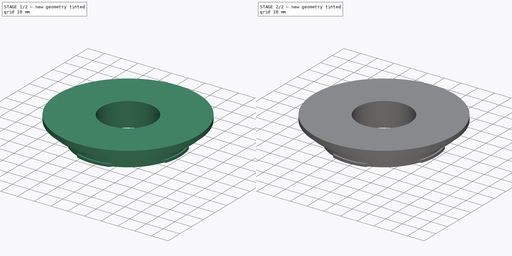
[diagram: build sequence overview — one tinted view per stage of 2, left to right]
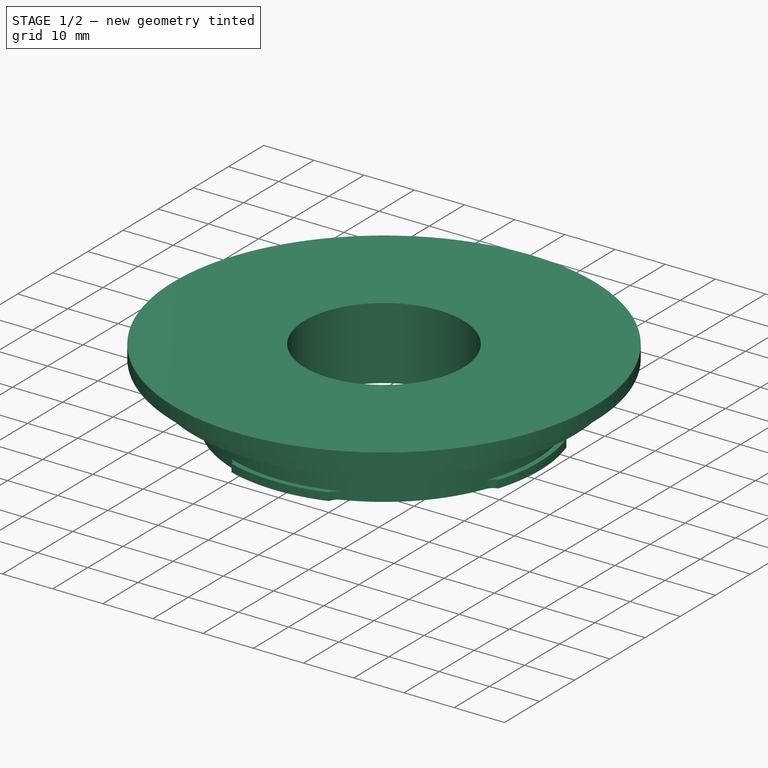
[diagram: stage 1 of 2 — iso view after this stage's code; geometry added in this stage tinted green]
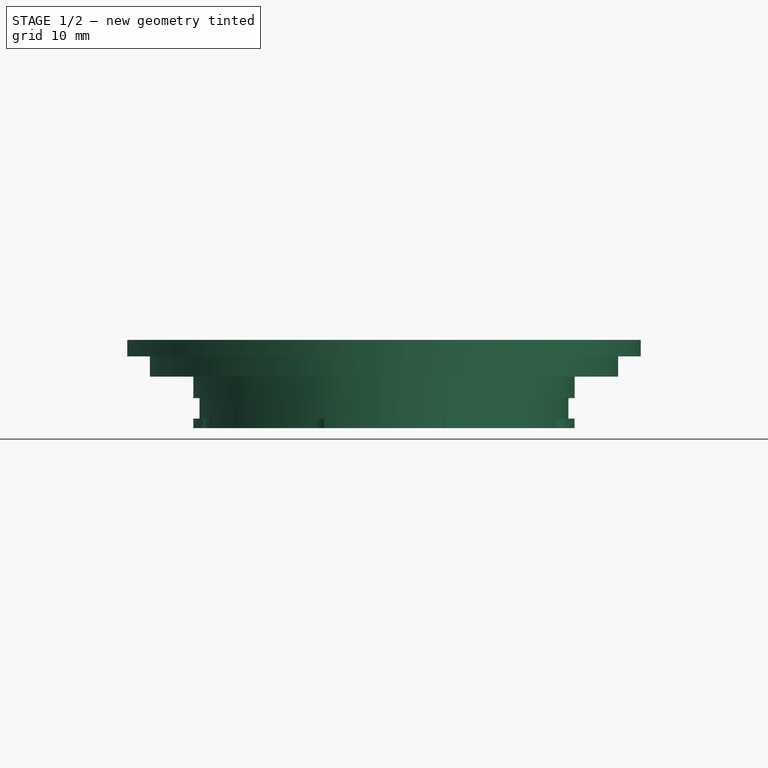
[diagram: stage 1 of 2 — front view after this stage's code; geometry added in this stage tinted green]
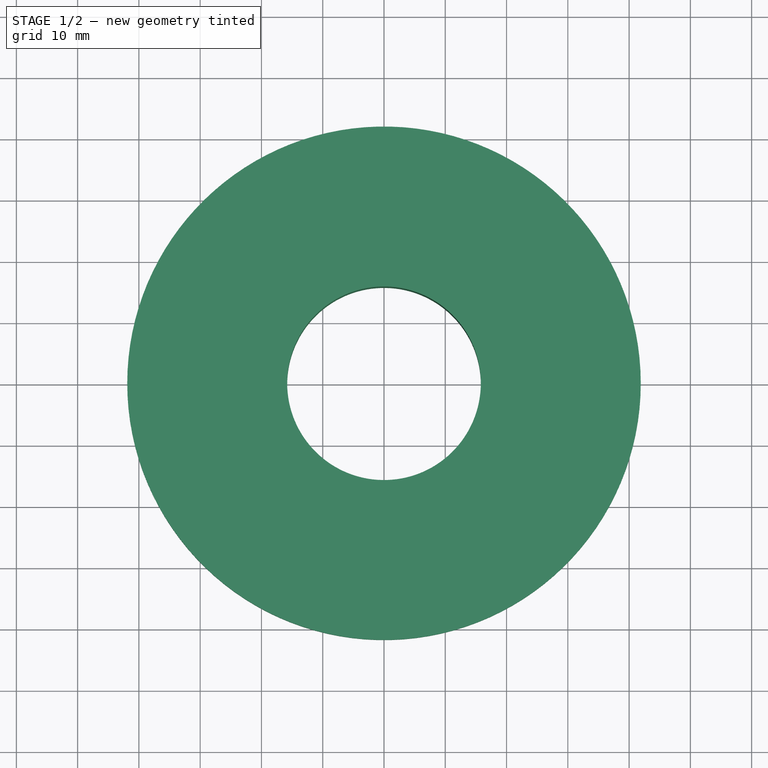
[diagram: stage 1 of 2 — top view after this stage's code; geometry added in this stage tinted green]
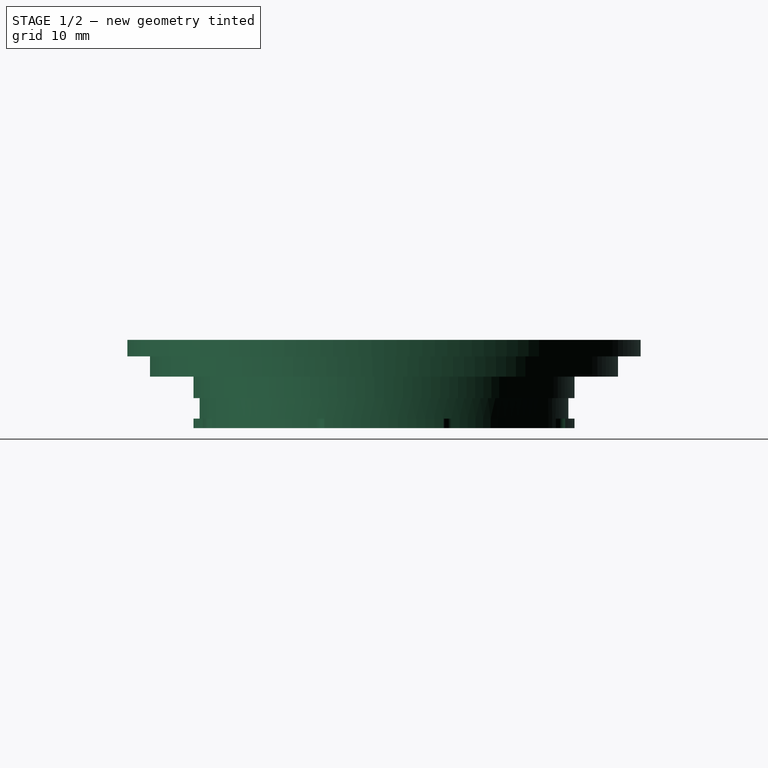
[diagram: stage 1 of 2 — right view after this stage's code; geometry added in this stage tinted green]
FCSTD DOCUMENT  (FreeCAD 1.0R39109 (Git))
Label: Rollei SL66 - lens bayonett
License: All rights reserved
LicenseURL: http://en.wikipedia.org/wiki/All_rights_reserved
objects: Sketcher::SketchObject×3, PartDesign::Pocket×2, PartDesign::Revolution×1, PartDesign::Body×1
note: 16 computed .brp shape members not serialized (recipe doc carries the construction recipe); baked Part::Feature solids carry a one-line shape summary decoded from their .brp

FEATURE [Sketcher::SketchObject] Sketch
  ArcFitTolerance = 0
  AttachmentSupport = -> [XZ_Plane]
  FullyConstrained = true
  MakeInternals = false
  MapMode = 5
  Placement = pos=(0,0,0) rot=(1,0,0;1.5708rad)
  sketch-geometry (14):
    g0: LineSegment StartX=-15.8 StartY=14.4 StartZ=0 EndX=-15.8 EndY=0 EndZ=0
    g1: LineSegment StartX=-15.8 StartY=0 StartZ=0 EndX=-31.1 EndY=0 EndZ=0
    g2: LineSegment StartX=-31.1 StartY=0 StartZ=0 EndX=-31.1 EndY=1.55 EndZ=0
    g3: LineSegment StartX=-31.1 StartY=1.55 StartZ=0 EndX=-30.1 EndY=1.55 EndZ=0
    g4: LineSegment StartX=-30.1 StartY=1.55 StartZ=0 EndX=-30.1 EndY=4.9 EndZ=0
    g5: LineSegment StartX=-30.1 StartY=4.9 StartZ=0 EndX=-31.1 EndY=4.9 EndZ=0
    g6: LineSegment StartX=-31.1 StartY=4.9 StartZ=0 EndX=-31.1 EndY=8.4 EndZ=0
    g7: LineSegment StartX=-31.1 StartY=8.4 StartZ=0 EndX=-38.2 EndY=8.4 EndZ=0
    g8: LineSegment StartX=-38.2 StartY=8.4 StartZ=0 EndX=-38.2 EndY=13.4 EndZ=0
    g9: LineSegment StartX=-38.2 StartY=13.4 StartZ=0 EndX=-40.9 EndY=13.4 EndZ=0
    g10: LineSegment StartX=-41.9 StartY=14.4 StartZ=0 EndX=-15.8 EndY=14.4 EndZ=0
    g11: LineSegment StartX=-40.9 StartY=13.4 StartZ=0 EndX=-40.9 EndY=11.7 EndZ=0
    g12: LineSegment StartX=-40.9 StartY=11.7 StartZ=0 EndX=-41.9 EndY=11.7 EndZ=0
    g13: LineSegment StartX=-41.9 StartY=11.7 StartZ=0 EndX=-41.9 EndY=14.4 EndZ=0
  constraints (42):
    c: Coincident(g1,g0)
    c: Coincident(g2,g1)
    c: Coincident(g3,g2)
    c: Coincident(g4,g3)
    c: Coincident(g5,g4)
    c: Coincident(g6,g5)
    c: Coincident(g7,g6)
    c: Coincident(g7,g8)
    c: DistanceX(g2,g3) = 1
    c: DistanceY(g1,g2) = 1.55
    c: DistanceY(g3,g4) = 3.35
    c: Vertical(g0)
    c: Vertical(g4)
    c: Horizontal(g1)
    c: Vertical(g2)
    c: Vertical(g6)
    c: Horizontal(g3)
    c: Equal(g5,g3)
    c: Horizontal(g7)
    c: DistanceX(g7,g6) = 7.1
    c: Vertical(g8)
    c: PointOnObject(g0,g-1)
    c: DistanceY(g7,g8) = 5
    c: Horizontal(g5)
    c: DistanceY(g5,g6) = 3.5
    c: DistanceX(g3,g-1) = 30.1
    c: DistanceX(g0,g-1) = 15.8
    c: Coincident(g9,g8)
    c: Horizontal(g9)
    c: Horizontal(g10)
    c: Coincident(g0,g10)
    c: Coincident(g11,g9)
    c: Vertical(g11)
    c: Coincident(g12,g11)
    c: Horizontal(g12)
    c: Vertical(g13)
    c: Coincident(g10,g13)
    c: Coincident(g12,g13)
    c: DistanceX(g12,g12) = 1
    c: DistanceX(g9,g9) = 2.7
    c: DistanceY(g7,g11) = 3.3
    c: DistanceY(g9,g10) = 1
FEATURE [PartDesign::Revolution] Revolution
  Angle = 360
  Angle2 = 60
  Axis = (0,2e-16,1)
  Base = (0,0,0)
  Placement = pos=(0,0,0) rot=(1,0,0;1.5708rad)
  Profile = -> Sketch
  ReferenceAxis = -> Sketch [V_Axis]
  Suppressed = false
  Type = 0
FEATURE [Sketcher::SketchObject] Sketch001
  ArcFitTolerance = 0
  AttachmentSupport = -> [Revolution]
  ExternalGeometry = -> [Revolution]
  FullyConstrained = true
  MakeInternals = false
  MapMode = 5
  Placement = pos=(0,0,0) rot=(1,0,0;3.14159rad)
  sketch-geometry (16):
    g0: ArcOfCircle CenterX=11.9 CenterY=30.0998 CenterZ=0 NormalX=0 NormalY=0 NormalZ=1 AngleXU=0 Radius=2.268 StartAngle=3.38709 EndAngle=4.30433
    g1: ArcOfCircle CenterX=30.0998 CenterY=11.9 CenterZ=0 NormalX=0 NormalY=0 NormalZ=1 AngleXU=0 Radius=2.268 StartAngle=3.54965 EndAngle=4.46689
    g2: ArcOfCircle CenterX=0 CenterY=0 CenterZ=0 NormalX=0 NormalY=0 NormalZ=1 AngleXU=0 Radius=30.1 StartAngle=0.374115 EndAngle=1.19668
    g3: ArcOfCircle CenterX=0 CenterY=0 CenterZ=0 NormalX=0 NormalY=0 NormalZ=1 AngleXU=0 Radius=31.1 StartAngle=0.317189 EndAngle=1.25361
    g4: ArcOfCircle CenterX=0 CenterY=0 CenterZ=0 NormalX=0 NormalY=0 NormalZ=1 AngleXU=0 Radius=30.1 StartAngle=1.94491 EndAngle=2.76748
    g5: ArcOfCircle CenterX=0 CenterY=0 CenterZ=0 NormalX=0 NormalY=0 NormalZ=1 AngleXU=0 Radius=31.1 StartAngle=1.88799 EndAngle=2.8244
    g6: ArcOfCircle CenterX=-30.0998 CenterY=11.9 CenterZ=0 NormalX=0 NormalY=0 NormalZ=1 AngleXU=0 Radius=2.268 StartAngle=4.95789 EndAngle=5.87513
    g7: ArcOfCircle CenterX=-11.9 CenterY=30.0998 CenterZ=0 NormalX=0 NormalY=0 NormalZ=1 AngleXU=0 Radius=2.268 StartAngle=5.12044 EndAngle=6.03769
    g8: ArcOfCircle CenterX=0 CenterY=0 CenterZ=0 NormalX=0 NormalY=0 NormalZ=1 AngleXU=0 Radius=30.1 StartAngle=3.51571 EndAngle=4.33827
    g9: ArcOfCircle CenterX=0 CenterY=0 CenterZ=0 NormalX=0 NormalY=0 NormalZ=1 AngleXU=0 Radius=31.1 StartAngle=3.45878 EndAngle=4.3952
    g10: ArcOfCircle CenterX=-11.9 CenterY=-30.0998 CenterZ=0 NormalX=0 NormalY=0 NormalZ=1 AngleXU=0 Radius=2.268 StartAngle=0.245497 EndAngle=1.16274
    g11: ArcOfCircle CenterX=-30.0998 CenterY=-11.9 CenterZ=0 NormalX=0 NormalY=0 NormalZ=1 AngleXU=0 Radius=2.268 StartAngle=0.408055 EndAngle=1.3253
    g12: ArcOfCircle CenterX=0 CenterY=0 CenterZ=0 NormalX=0 NormalY=0 NormalZ=1 AngleXU=0 Radius=30.1 StartAngle=5.0865 EndAngle=5.90907
    g13: ArcOfCircle CenterX=0 CenterY=0 CenterZ=0 NormalX=0 NormalY=0 NormalZ=1 AngleXU=0 Radius=31.1 StartAngle=5.02958 EndAngle=5.966
    g14: ArcOfCircle CenterX=11.9 CenterY=-30.0998 CenterZ=0 NormalX=0 NormalY=0 NormalZ=1 AngleXU=0 Radius=2.268 StartAngle=1.97885 EndAngle=2.8961
    g15: ArcOfCircle CenterX=30.0998 CenterY=-11.9 CenterZ=0 NormalX=0 NormalY=0 NormalZ=1 AngleXU=0 Radius=2.268 StartAngle=1.81629 EndAngle=2.73354
  constraints (44):
    c: DistanceX(g-1,g0) = 9.7
    c: DistanceX(g-1,g0) = 11
    c: DistanceX(g-1,g0) = 11.9
    c: PointOnObject(g1,g-3)
    c: DistanceY(g-1,g1) = 9.7
    c: DistanceY(g-1,g1) = 11
    c: DistanceY(g-1,g1) = 11.9
    c: Coincident(g2,g0)
    c: Coincident(g2,g1)
    c: Coincident(g3,g0)
    c: Coincident(g3,g1)
    c: Coincident(g3,g2)
    c: PointOnObject(g0,g-4)
    c: Coincident(g4,g7)
    c: Coincident(g4,g6)
    c: Coincident(g5,g7)
    c: Coincident(g5,g6)
    c: Coincident(g5,g4)
    c: Coincident(g12,g14)
    c: Coincident(g12,g15)
    c: Coincident(g13,g14)
    c: Coincident(g13,g15)
    c: Coincident(g13,g12)
    c: Coincident(g8,g10)
    c: Coincident(g8,g11)
    c: Coincident(g9,g10)
    c: Coincident(g9,g11)
    c: Coincident(g9,g8)
    c: Symmetric(g0,g7,g-2)
    c: Symmetric(g5,g0,g-2)
    c: Symmetric(g1,g6,g-2)
    c: Symmetric(g4,g1,g-2)
    c: Symmetric(g15,g1,g-1)
    c: Symmetric(g12,g1,g-1)
    c: Symmetric(g9,g5,g-1)
    c: Symmetric(g10,g7,g-1)
    c: Symmetric(g9,g13,g-2)
    c: Symmetric(g10,g14,g-2)
    c: Symmetric(g11,g15,g-2)
    c: Symmetric(g8,g12,g-2)
    c: Coincident(g2,g4)
    c: Coincident(g2,g8)
    c: Coincident(g2,g12)
    c: Coincident(g2,g-4)
FEATURE [PartDesign::Pocket] Pocket  label="cut outs first ring"
  BaseFeature = -> Revolution
  Direction = (0,0,1)
  Length = 1.55
  Length2 = 100
  Placement = pos=(0,0,0) rot=(1,0,0;1.5708rad)
  Profile = -> Sketch001
  Suppressed = false
  Type = 0
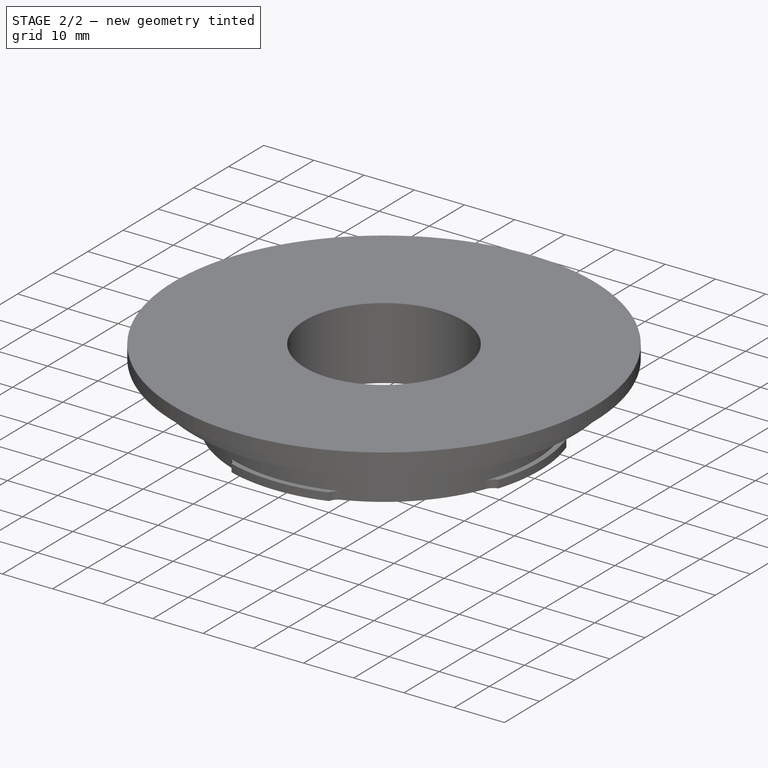
[diagram: stage 2 of 2 — iso view after this stage's code; geometry added in this stage tinted green]
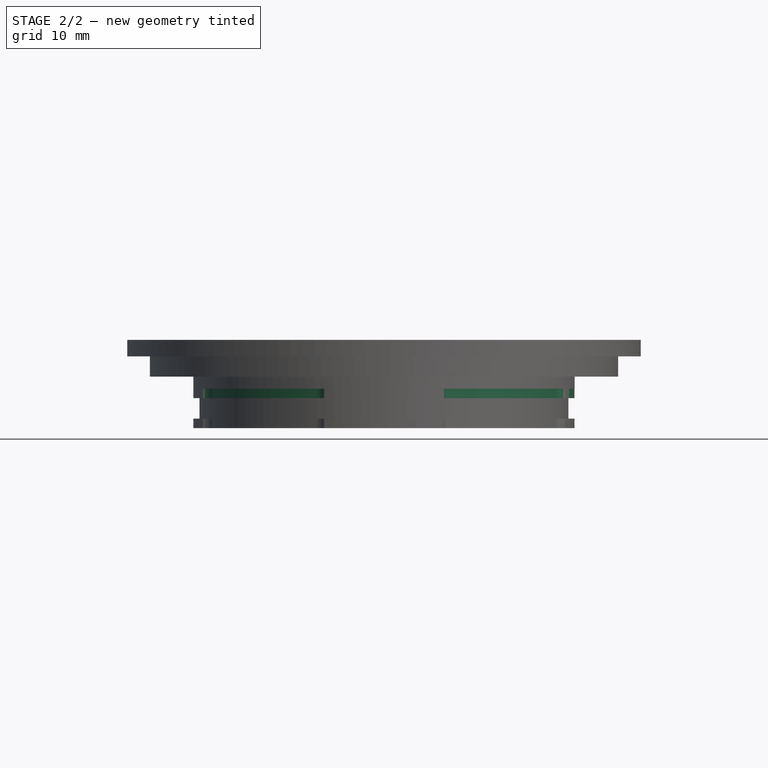
[diagram: stage 2 of 2 — front view after this stage's code; geometry added in this stage tinted green]
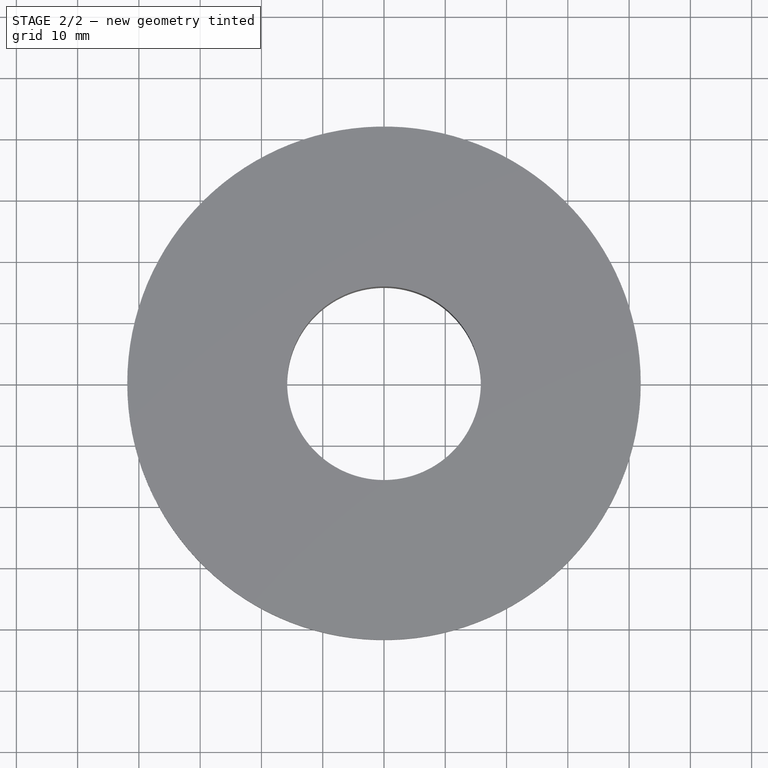
[diagram: stage 2 of 2 — top view after this stage's code; geometry added in this stage tinted green]
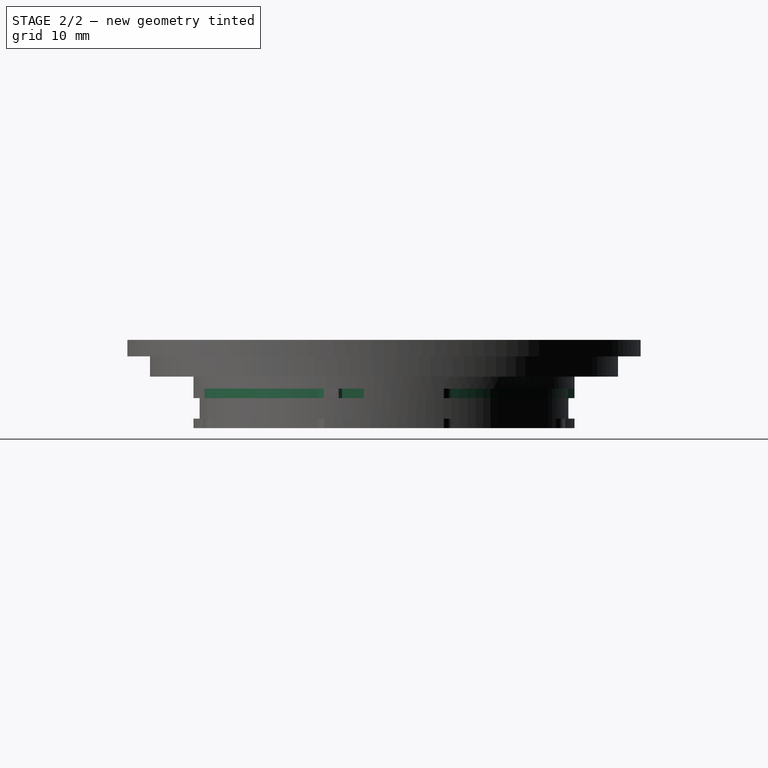
[diagram: stage 2 of 2 — right view after this stage's code; geometry added in this stage tinted green]
FEATURE [Sketcher::SketchObject] Sketch002
  ArcFitTolerance = 0
  AttachmentSupport = -> [Pocket]
  ExternalGeometry = -> [Pocket]
  FullyConstrained = true
  MakeInternals = false
  MapMode = 5
  Placement = pos=(0,2.2e-15,4.9) rot=(1,0,0;3.14159rad)
  sketch-geometry (20):
    g0: ArcOfCircle CenterX=-2.4e-15 CenterY=-6.6e-15 CenterZ=0 NormalX=0 NormalY=0 NormalZ=1 AngleXU=0 Radius=30.1 StartAngle=0.374115 EndAngle=1.19668
    g1: ArcOfCircle CenterX=30.0998 CenterY=11.9 CenterZ=0 NormalX=0 NormalY=0 NormalZ=1 AngleXU=0 Radius=2.268 StartAngle=3.54965 EndAngle=4.46689
    g2: ArcOfCircle CenterX=11.9 CenterY=30.0998 CenterZ=0 NormalX=0 NormalY=0 NormalZ=1 AngleXU=0 Radius=2.268 StartAngle=3.38709 EndAngle=4.30433
    g3: ArcOfCircle CenterX=-2.4e-15 CenterY=-6.6e-15 CenterZ=0 NormalX=0 NormalY=0 NormalZ=1 AngleXU=0 Radius=31.1 StartAngle=0.317189 EndAngle=1.25361
    g4: ArcOfCircle CenterX=-2.4e-15 CenterY=-6.6e-15 CenterZ=0 NormalX=0 NormalY=0 NormalZ=1 AngleXU=0 Radius=31.1 StartAngle=0.106309 EndAngle=0.240247
    g5: LineSegment StartX=30.2068 StartY=7.4 StartZ=0 EndX=27.9728 EndY=6.85273 EndZ=0
    g6: LineSegment StartX=30.9244 StartY=3.3 StartZ=0 EndX=28.6374 EndY=3.05595 EndZ=0
    g7: LineSegment StartX=28.6374 StartY=3.05595 StartZ=0 EndX=27.9728 EndY=6.85273 EndZ=0
    g8: ArcOfCircle CenterX=30.0998 CenterY=-11.9 CenterZ=0 NormalX=0 NormalY=0 NormalZ=1 AngleXU=0 Radius=2.268 StartAngle=1.81629 EndAngle=2.7329
    g9: ArcOfCircle CenterX=-2.4e-15 CenterY=-6.6e-15 CenterZ=0 NormalX=0 NormalY=0 NormalZ=1 AngleXU=0 Radius=30.1 StartAngle=4.79888 EndAngle=5.90912
    g10: ArcOfCircle CenterX=-2.4e-15 CenterY=-6.6e-15 CenterZ=0 NormalX=0 NormalY=0 NormalZ=1 AngleXU=0 Radius=31.1 StartAngle=4.77674 EndAngle=5.966
    g11: LineSegment StartX=2.6 StartY=-29.9875 StartZ=0 EndX=2 EndY=-31.0356 EndZ=0
    g12: ArcOfCircle CenterX=-11.9 CenterY=-30.0998 CenterZ=0 NormalX=0 NormalY=0 NormalZ=1 AngleXU=0 Radius=2.268 StartAngle=0.245497 EndAngle=1.16274
    g13: ArcOfCircle CenterX=-2.4e-15 CenterY=-6.6e-15 CenterZ=0 NormalX=0 NormalY=0 NormalZ=1 AngleXU=0 Radius=30.1 StartAngle=3.51571 EndAngle=4.33827
    g14: ArcOfCircle CenterX=-2.4e-15 CenterY=-6.6e-15 CenterZ=0 NormalX=0 NormalY=0 NormalZ=1 AngleXU=0 Radius=31.1 StartAngle=3.45878 EndAngle=4.3952
    g15: ArcOfCircle CenterX=-30.0998 CenterY=-11.9 CenterZ=0 NormalX=0 NormalY=0 NormalZ=1 AngleXU=0 Radius=2.268 StartAngle=0.408055 EndAngle=1.3253
    g16: ArcOfCircle CenterX=-2.4e-15 CenterY=-6.6e-15 CenterZ=0 NormalX=0 NormalY=0 NormalZ=1 AngleXU=0 Radius=30.1 StartAngle=1.94491 EndAngle=2.76748
    g17: ArcOfCircle CenterX=-2.4e-15 CenterY=-6.6e-15 CenterZ=0 NormalX=0 NormalY=0 NormalZ=1 AngleXU=0 Radius=31.1 StartAngle=1.88799 EndAngle=2.8244
    g18: ArcOfCircle CenterX=-11.9 CenterY=30.0998 CenterZ=0 NormalX=0 NormalY=0 NormalZ=1 AngleXU=0 Radius=2.268 StartAngle=5.12044 EndAngle=6.03769
    g19: ArcOfCircle CenterX=-30.0998 CenterY=11.9 CenterZ=0 NormalX=0 NormalY=0 NormalZ=1 AngleXU=0 Radius=2.268 StartAngle=4.95789 EndAngle=5.87513
  constraints (54):
    c: Coincident(g0,g-3)
    c: Coincident(g0,g-4)
    c: Coincident(g1,g-4)
    c: Coincident(g1,g0)
    c: Coincident(g2,g-3)
    c: Coincident(g2,g0)
    c: Coincident(g3,g2)
    c: Coincident(g3,g1)
    c: Coincident(g0,g3)
    c: Coincident(g4,g0)
    c: Coincident(g5,g4)
    c: Coincident(g6,g4)
    c: Coincident(g7,g5)
    c: Perpendicular(g-11,g5)
    c: Perpendicular(g-11,g6)
    c: Coincident(g7,g6)
    c: Equal(g6,g5)
    c: PointOnObject(g4,g-11)
    c: DistanceY(g4,g1) = 2.3
    c: Coincident(g8,g-5)
    c: Coincident(g8,g-11)
    c: DistanceY(g8,g4) = 13
    c: Coincident(g9,g0)
    c: Coincident(g9,g8)
    c: Coincident(g10,g0)
    c: Coincident(g10,g8)
    c: DistanceX(g-6,g10) = 11.7
    c: DistanceX(g-13,g9) = 13.6
    c: Coincident(g11,g9)
    c: Coincident(g11,g10)
    c: Coincident(g12,g-6)
    c: Coincident(g12,g-6)
    c: Coincident(g13,g0)
    c: Coincident(g13,g12)
    c: Coincident(g13,g-7)
    c: Coincident(g14,g0)
    c: Coincident(g14,g12)
    c: Coincident(g15,g-7)
    c: Coincident(g15,g14)
    c: Coincident(g15,g13)
    c: Coincident(g16,g0)
    c: Coincident(g16,g-8)
    c: Coincident(g16,g-9)
    c: Coincident(g17,g0)
    c: Coincident(g17,g-8)
    c: Coincident(g18,g-9)
    c: Coincident(g18,g17)
    c: Coincident(g18,g16)
    c: Coincident(g19,g-8)
    c: Coincident(g19,g17)
    c: Distance(g4,g6) = 2.3
    c: DistanceX(g8,g8) = 1.53
    c: DistanceX(g2,g0) = 1.3
    c: DistanceY(g17,g19) = 1.3
FEATURE [PartDesign::Pocket] Pocket001  label="cut outs second ring"
  BaseFeature = -> Pocket
  Direction = (0,0,1)
  Length = 1.55
  Length2 = 100
  Placement = pos=(0,0,0) rot=(1,0,0;1.5708rad)
  Profile = -> Sketch002
  Suppressed = false
  Type = 0
FEATURE [PartDesign::Body] Body  label="lens bayonett"
  AllowCompound = false
  Group = -> [Sketch,Revolution,Sketch001,Pocket,Sketch002,Pocket001]
  Origin = -> Origin
  Tip = -> Pocket001
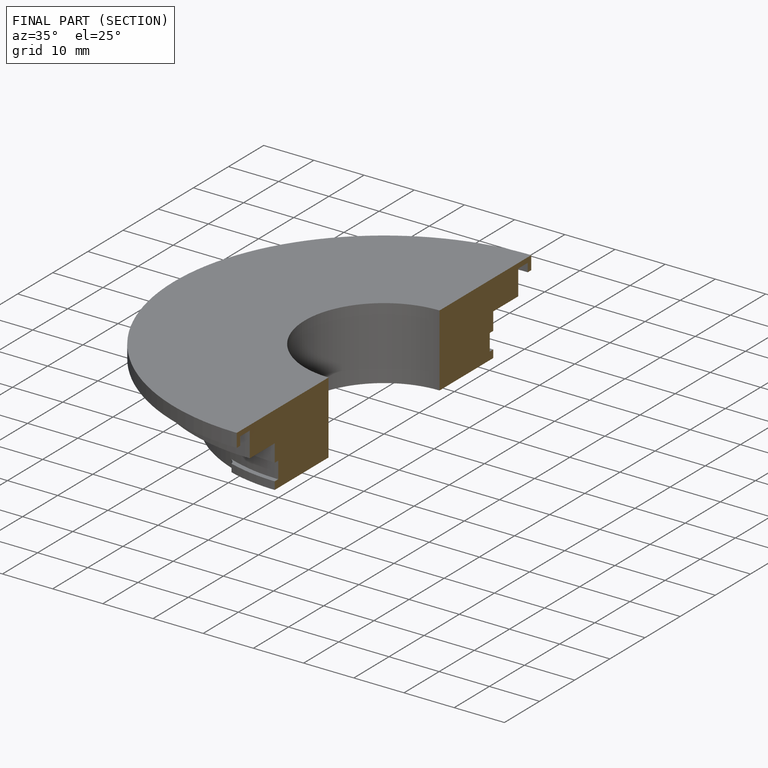
[diagram: finished part — half-section view (interior)]
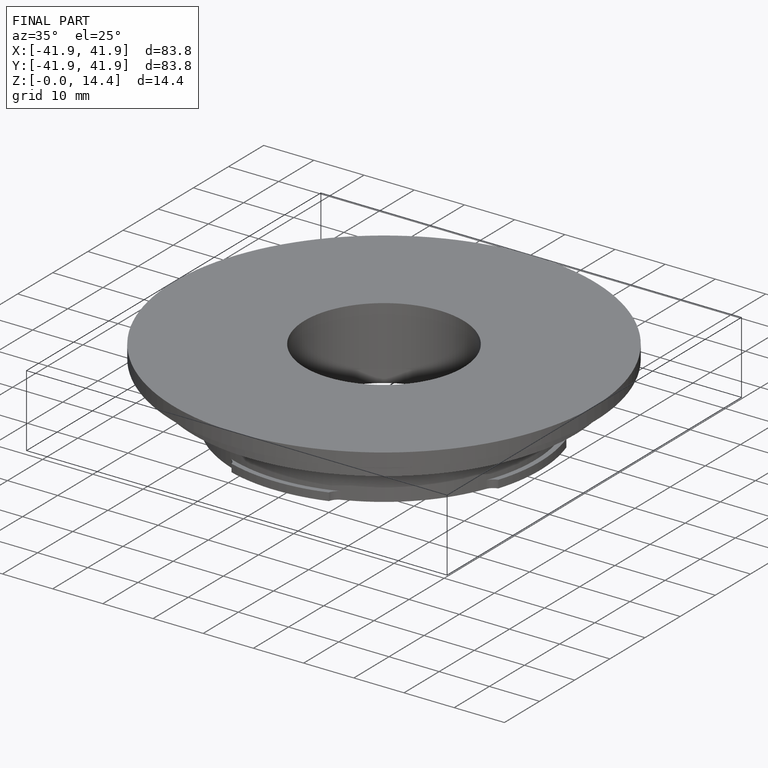
[diagram: finished part — iso view with bounding-box wireframe]
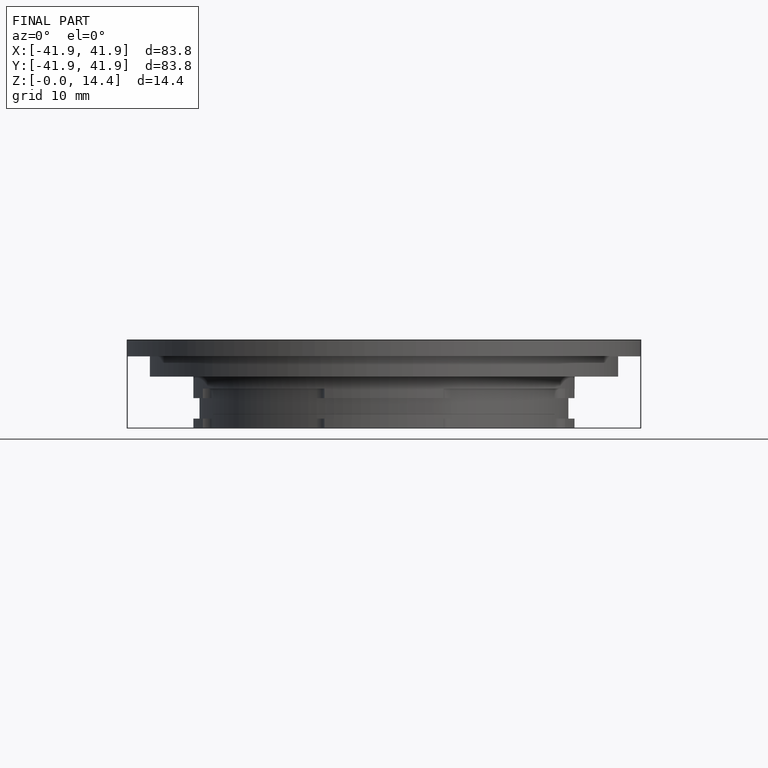
[diagram: finished part — front view with bounding-box wireframe]
